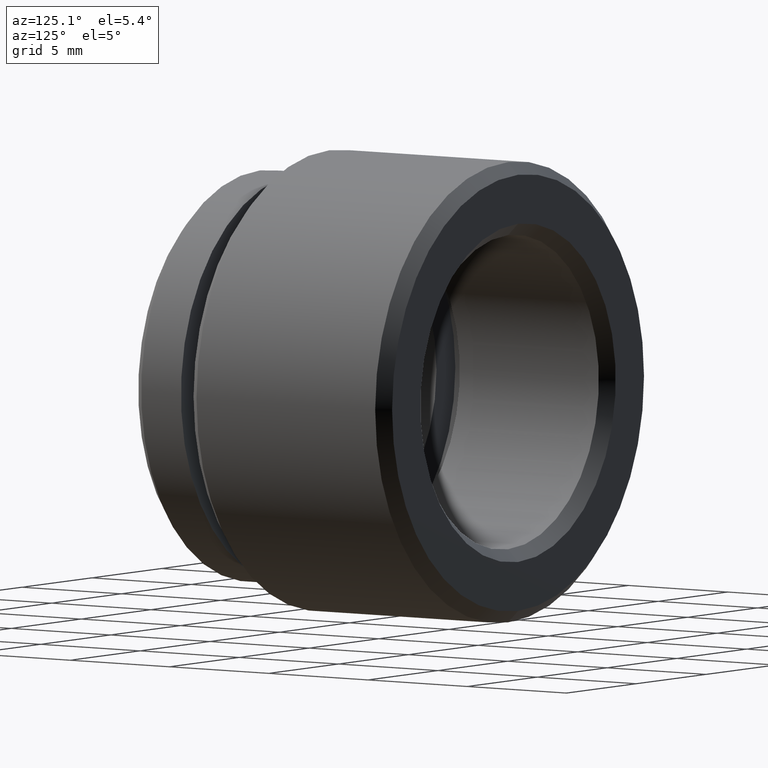
[diagram: clean part render]
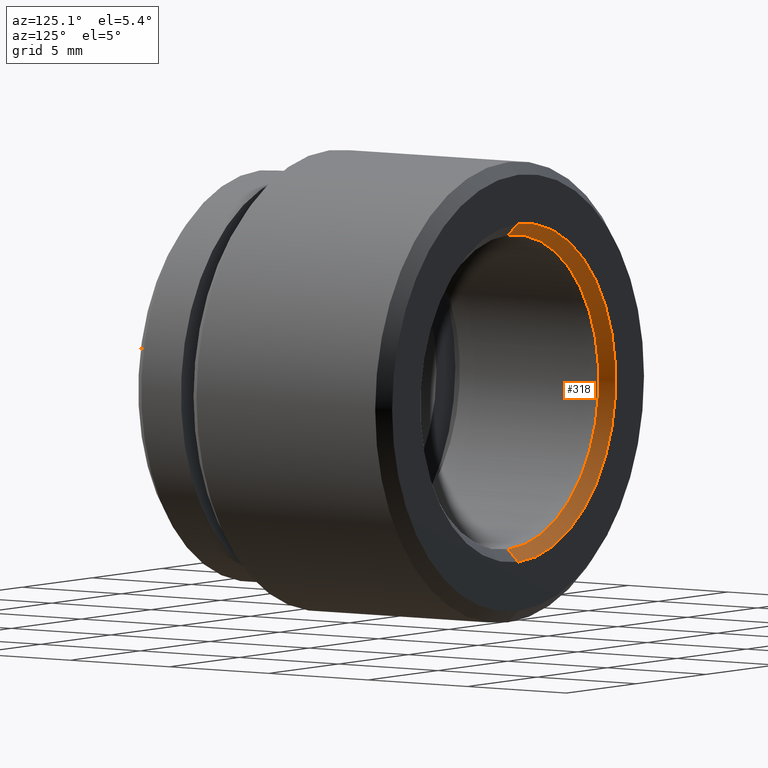
[diagram: same view with one face highlighted and labeled with its STEP entity id]
A machine part, auxiliary view. The second image highlights one B-rep face of the part: STEP entity #318.
In plain terms, the highlighted conical surface has half-angle 45 deg.
Its self-contained STEP definition (entity closure, byte-faithful):
#4 = DIRECTION ( 'NONE',  ( 0.0000000000000000000, 0.0000000000000000000, 1.000000000000000000 ) ) ;
#12 = CIRCLE ( 'NONE', #136, 6.500000000000000900 ) ;
#23 = CARTESIAN_POINT ( 'NONE',  ( 8.572527594031472200E-016, 13.49999999999999800, -6.999999999999999100 ) ) ;
#33 = CARTESIAN_POINT ( 'NONE',  ( 0.0000000000000000000, 13.49999999999999800, 0.0000000000000000000 ) ) ;
#87 = CONICAL_SURFACE ( 'NONE', #166, 6.999999999999999100, 0.7853981633974447300 ) ;
#92 = VERTEX_POINT ( 'NONE', #830 ) ;
#116 = CARTESIAN_POINT ( 'NONE',  ( 0.0000000000000000000, 13.49999999999999800, 6.999999999999999100 ) ) ;
#127 = DIRECTION ( 'NONE',  ( 0.0000000000000000000, 0.0000000000000000000, 1.000000000000000000 ) ) ;
#136 = AXIS2_PLACEMENT_3D ( 'NONE', #845, #816, #4 ) ;
#163 = EDGE_CURVE ( 'NONE', #281, #517, #620, .T. ) ;
#166 = AXIS2_PLACEMENT_3D ( 'NONE', #395, #631, #127 ) ;
#199 = EDGE_LOOP ( 'NONE', ( #599, #802, #672, #623 ) ) ;
#250 = FACE_OUTER_BOUND ( 'NONE', #199, .T. ) ;
#260 = EDGE_CURVE ( 'NONE', #552, #517, #687, .T. ) ;
#281 = VERTEX_POINT ( 'NONE', #314 ) ;
#314 = CARTESIAN_POINT ( 'NONE',  ( 0.0000000000000000000, 12.99999999999999600, -6.500000000000000900 ) ) ;
#318 = ADVANCED_FACE ( 'NONE', ( #250 ), #87, .F. ) ;
#365 = LINE ( 'NONE', #116, #712 ) ;
#395 = CARTESIAN_POINT ( 'NONE',  ( 0.0000000000000000000, 13.49999999999999800, 0.0000000000000000000 ) ) ;
#430 = EDGE_CURVE ( 'NONE', #92, #552, #365, .T. ) ;
#494 = DIRECTION ( 'NONE',  ( 0.0000000000000000000, 0.0000000000000000000, 1.000000000000000000 ) ) ;
#496 = CARTESIAN_POINT ( 'NONE',  ( 8.572527594031472200E-016, 13.49999999999999800, -6.999999999999999100 ) ) ;
#517 = VERTEX_POINT ( 'NONE', #496 ) ;
#541 = CARTESIAN_POINT ( 'NONE',  ( 0.0000000000000000000, 13.49999999999999800, 6.999999999999999100 ) ) ;
#552 = VERTEX_POINT ( 'NONE', #541 ) ;
#599 = ORIENTED_EDGE ( 'NONE', *, *, #801, .F. ) ;
#611 = VECTOR ( 'NONE', #669, 1000.000000000000000 ) ;
#620 = LINE ( 'NONE', #23, #611 ) ;
#623 = ORIENTED_EDGE ( 'NONE', *, *, #430, .F. ) ;
#631 = DIRECTION ( 'NONE',  ( -0.0000000000000000000, 1.000000000000000000, -0.0000000000000000000 ) ) ;
#669 = DIRECTION ( 'NONE',  ( 8.659560562354902000E-017, 0.7071067811865500200, -0.7071067811865450200 ) ) ;
#672 = ORIENTED_EDGE ( 'NONE', *, *, #260, .F. ) ;
#687 = CIRCLE ( 'NONE', #814, 6.999999999999999100 ) ;
#712 = VECTOR ( 'NONE', #727, 1000.000000000000000 ) ;
#727 = DIRECTION ( 'NONE',  ( 0.0000000000000000000, 0.7071067811865500200, 0.7071067811865450200 ) ) ;
#769 = DIRECTION ( 'NONE',  ( -0.0000000000000000000, -1.000000000000000000, -0.0000000000000000000 ) ) ;
#801 = EDGE_CURVE ( 'NONE', #281, #92, #12, .T. ) ;
#802 = ORIENTED_EDGE ( 'NONE', *, *, #163, .T. ) ;
#814 = AXIS2_PLACEMENT_3D ( 'NONE', #33, #769, #494 ) ;
#816 = DIRECTION ( 'NONE',  ( -0.0000000000000000000, 1.000000000000000000, -0.0000000000000000000 ) ) ;
#830 = CARTESIAN_POINT ( 'NONE',  ( 7.960204194457796500E-016, 12.99999999999999600, 6.500000000000000900 ) ) ;
#845 = CARTESIAN_POINT ( 'NONE',  ( 0.0000000000000000000, 12.99999999999999600, 0.0000000000000000000 ) ) ;